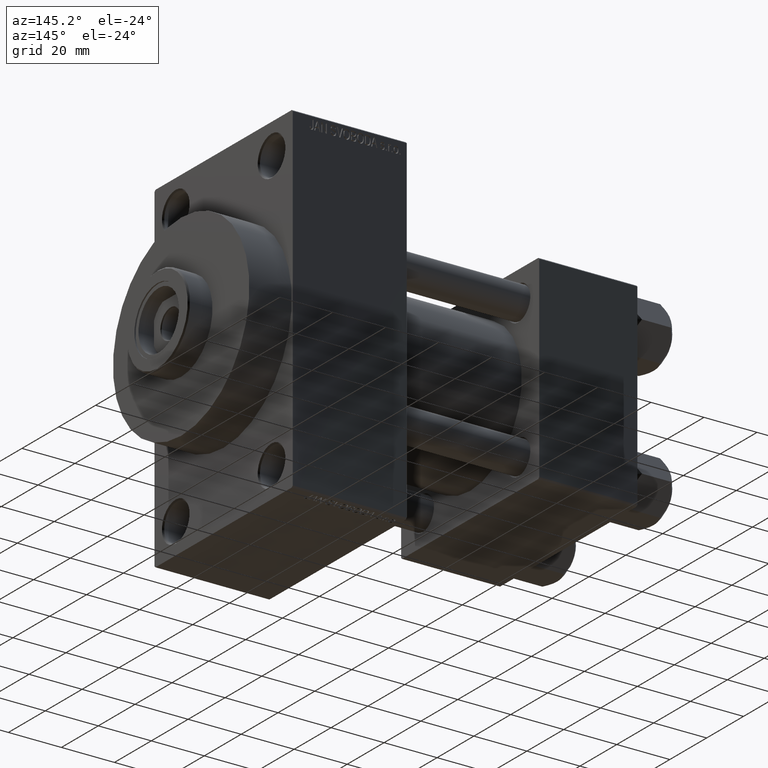
[diagram: clean part render]
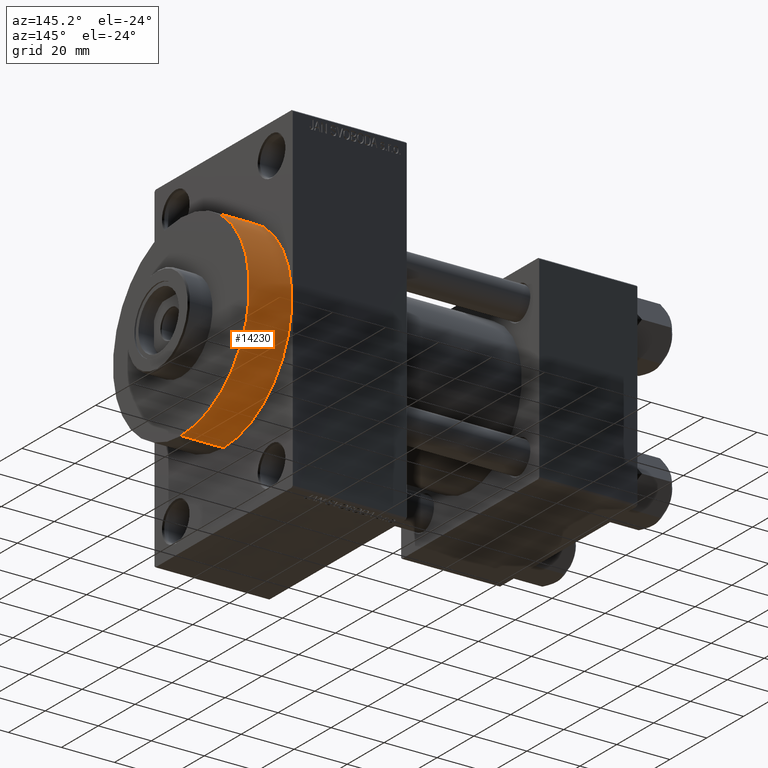
[diagram: same view with one face highlighted and labeled with its STEP entity id]
A machine part, auxiliary view. The second image highlights one B-rep face of the part: STEP entity #14230.
In plain terms, the highlighted cylindrical surface (partial cylindrical patch) has radius 37 mm, axis along (-1, -0, -0).
Its self-contained STEP definition (entity closure, byte-faithful):
#368 = CARTESIAN_POINT ( 'NONE',  ( 130.0000000000000000, 4.531193156845206793E-15, -37.00000000000000000 ) ) ;
#532 = CARTESIAN_POINT ( 'NONE',  ( 146.0000000000000284, 4.531193156845206793E-15, -37.00000000000000000 ) ) ;
#3084 = EDGE_CURVE ( 'NONE', #39882, #29304, #18981, .T. ) ;
#3719 = DIRECTION ( 'NONE',  ( 0.000000000000000000, 0.000000000000000000, 1.000000000000000000 ) ) ;
#5689 = CARTESIAN_POINT ( 'NONE',  ( 130.0000000000000000, 0.000000000000000000, 0.000000000000000000 ) ) ;
#6602 = AXIS2_PLACEMENT_3D ( 'NONE', #21646, #13762, #3719 ) ;
#6836 = CYLINDRICAL_SURFACE ( 'NONE', #6602, 37.00000000000000000 ) ;
#7000 = VERTEX_POINT ( 'NONE', #15680 ) ;
#7458 = ORIENTED_EDGE ( 'NONE', *, *, #19476, .F. ) ;
#9038 = DIRECTION ( 'NONE',  ( 0.000000000000000000, 0.000000000000000000, -1.000000000000000000 ) ) ;
#9153 = CIRCLE ( 'NONE', #28206, 37.00000000000000000 ) ;
#9825 = EDGE_CURVE ( 'NONE', #24858, #7000, #9153, .T. ) ;
#11076 = DIRECTION ( 'NONE',  ( 1.000000000000000000, 0.000000000000000000, 0.000000000000000000 ) ) ;
#11378 = VECTOR ( 'NONE', #26555, 1000.000000000000000 ) ;
#11981 = LINE ( 'NONE', #532, #11378 ) ;
#13328 = DIRECTION ( 'NONE',  ( 1.000000000000000000, 0.000000000000000000, 0.000000000000000000 ) ) ;
#13762 = DIRECTION ( 'NONE',  ( -1.000000000000000000, -0.000000000000000000, -0.000000000000000000 ) ) ;
#14149 = ORIENTED_EDGE ( 'NONE', *, *, #23883, .T. ) ;
#14230 = ADVANCED_FACE ( 'NONE', ( #36452 ), #6836, .T. ) ;
#15680 = CARTESIAN_POINT ( 'NONE',  ( 130.0000000000000000, 0.000000000000000000, 37.00000000000000000 ) ) ;
#17625 = ORIENTED_EDGE ( 'NONE', *, *, #3084, .F. ) ;
#18229 = DIRECTION ( 'NONE',  ( 0.000000000000000000, 0.000000000000000000, -1.000000000000000000 ) ) ;
#18981 = CIRCLE ( 'NONE', #39565, 37.00000000000000000 ) ;
#19476 = EDGE_CURVE ( 'NONE', #29304, #7000, #39104, .T. ) ;
#21434 = DIRECTION ( 'NONE',  ( -1.000000000000000000, -0.000000000000000000, -0.000000000000000000 ) ) ;
#21646 = CARTESIAN_POINT ( 'NONE',  ( 146.0000000000000284, 0.000000000000000000, 0.000000000000000000 ) ) ;
#23883 = EDGE_CURVE ( 'NONE', #39882, #24858, #11981, .T. ) ;
#24858 = VERTEX_POINT ( 'NONE', #368 ) ;
#26348 = CARTESIAN_POINT ( 'NONE',  ( 146.0000000000000284, 0.000000000000000000, 0.000000000000000000 ) ) ;
#26555 = DIRECTION ( 'NONE',  ( -1.000000000000000000, -0.000000000000000000, -0.000000000000000000 ) ) ;
#28206 = AXIS2_PLACEMENT_3D ( 'NONE', #5689, #13328, #9038 ) ;
#29304 = VERTEX_POINT ( 'NONE', #35798 ) ;
#30425 = EDGE_LOOP ( 'NONE', ( #17625, #14149, #39341, #7458 ) ) ;
#34650 = CARTESIAN_POINT ( 'NONE',  ( 146.0000000000000284, 4.531193156845206793E-15, -37.00000000000000000 ) ) ;
#35798 = CARTESIAN_POINT ( 'NONE',  ( 146.0000000000000284, 0.000000000000000000, 37.00000000000000000 ) ) ;
#36452 = FACE_OUTER_BOUND ( 'NONE', #30425, .T. ) ;
#36509 = VECTOR ( 'NONE', #21434, 1000.000000000000000 ) ;
#39104 = LINE ( 'NONE', #46260, #36509 ) ;
#39341 = ORIENTED_EDGE ( 'NONE', *, *, #9825, .T. ) ;
#39565 = AXIS2_PLACEMENT_3D ( 'NONE', #26348, #11076, #18229 ) ;
#39882 = VERTEX_POINT ( 'NONE', #34650 ) ;
#46260 = CARTESIAN_POINT ( 'NONE',  ( 146.0000000000000284, 0.000000000000000000, 37.00000000000000000 ) ) ;